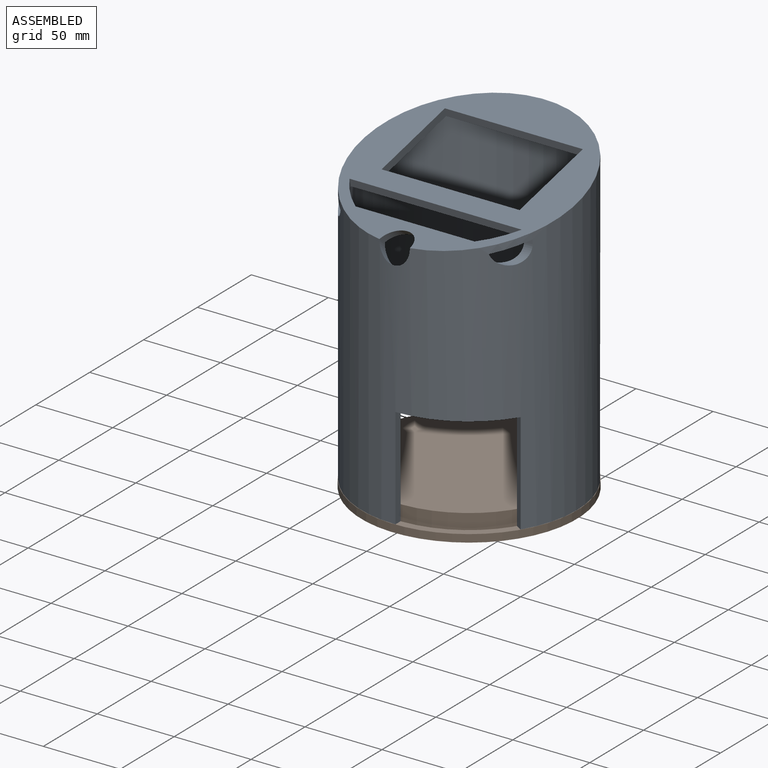
[diagram: assembled view]
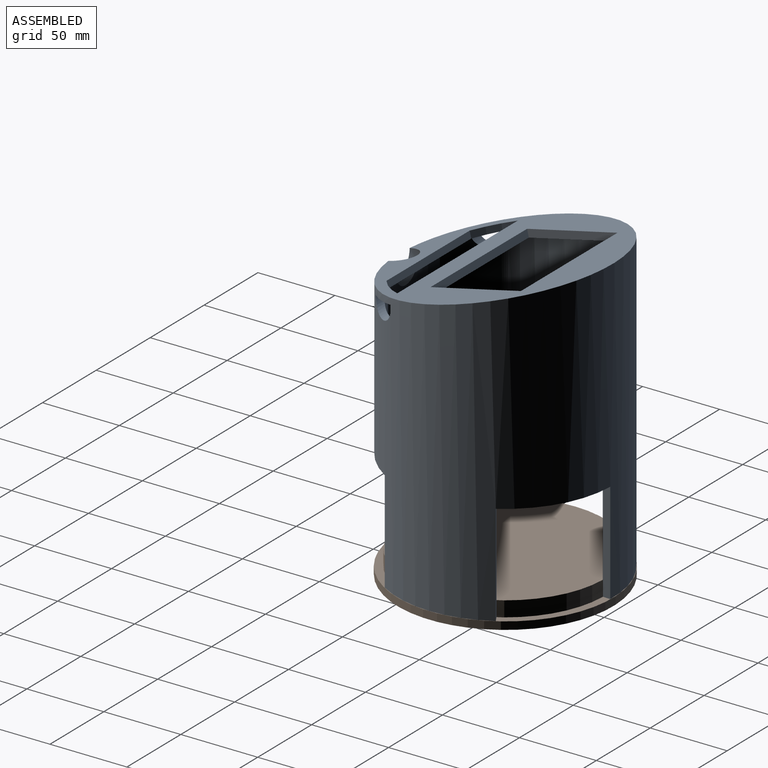
[diagram: assembled view, second angle]
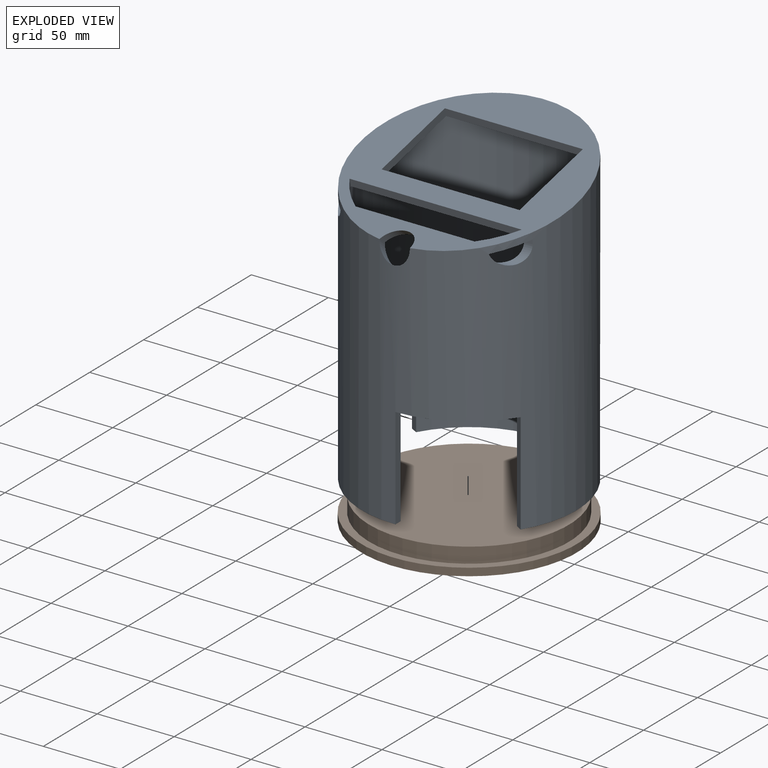
[diagram: exploded view]
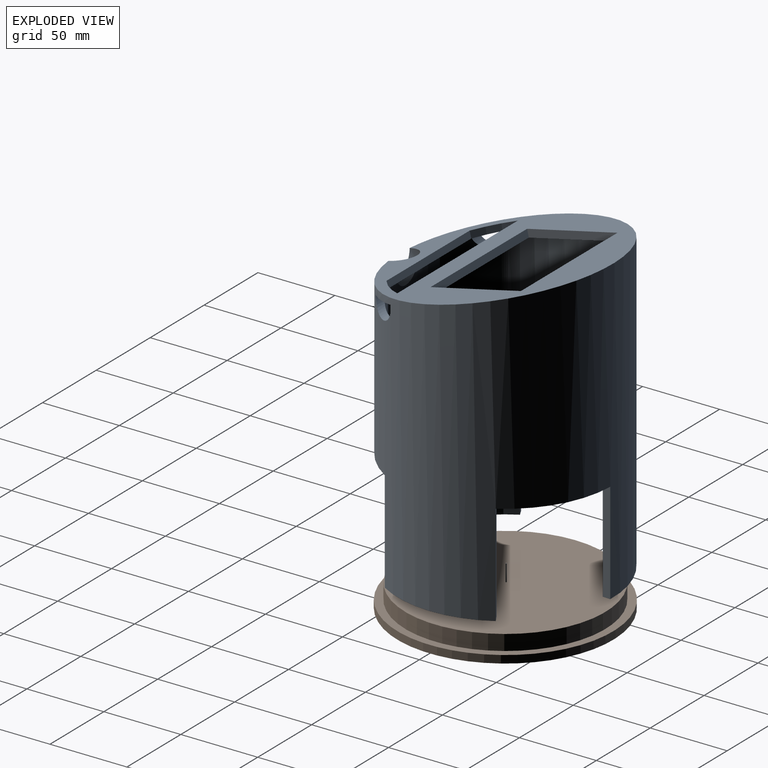
[diagram: exploded view, second angle]
ASSEMBLY  parts=2 mates=2
PART A: 34 faces, bbox 139.7x145.5x196.2 mm
  f0: plane 81.44x13.62mm, normal (0,0.22,-0.97), area 629mm2, adj f7,f12,f32
  f1: plane 139.68x138.97mm, normal (0,-0.22,0.97), area 8220.6mm2, adj f5,f8,f9,f10,f11,f12,f22,f23
  f2: plane 129.68x95.52mm, normal (0,0.22,-0.97), area 5224mm2, adj f7,f8,f9,f10,f11,f23,f24,f25
  f3: plane 62.57x39.29mm, normal (0,0,-1), area 368.4mm2, adj f5,f7,f14,f19
  f4: plane 63.26x38.21mm, normal (0,0,-1), area 368.4mm2, adj f5,f7,f16,f20
  f5: cylinder r=69.84mm len=196.19mm, axis (0,0,-1), area 64607.6mm2, adj f1,f3,f4,f6,f12,f13,f14,f15
  f6: plane 72.65x14.79mm, normal (0,0,-1), area 368.4mm2, adj f5,f7,f13,f17
  f7: cylinder r=64.84mm len=189.87mm, axis (0,0,-1), area 57857.2mm2, adj f0,f2,f3,f4,f6,f12,f13,f14
  f8: plane 89.61x4.88mm, normal (0,-0.97,-0.22), area 448mm2, adj f1,f2,f9,f11
  f9: plane 59.85x18.26mm, normal (1,0,0), area 301.2mm2, adj f1,f2,f8,f10
  f10: plane 89.61x4.88mm, normal (0,0.97,0.22), area 448mm2, adj f1,f2,f9,f11
  f11: plane 59.85x18.26mm, normal (-1,0,0), area 301.2mm2, adj f1,f2,f8,f10
  f12: cylinder r=9.89mm len=24.34mm, axis (0,0.75,-0.66), area 399.6mm2, adj f0,f1,f5,f7
  f13: plane 66x4.25mm, normal (-0.53,-0.85,0), area 330mm2, adj f5,f6,f7,f15
  f14: plane 66x5mm, normal (1,0.01,0), area 330mm2, adj f3,f5,f7,f15
  f15: plane 58.39x35.58mm, normal (0,0,-1), area 336.8mm2, adj f5,f7,f13,f14
  f16: plane 66x5mm, normal (1,-0.03,0), area 330mm2, adj f4,f5,f7,f18
  f17: plane 66x4.3mm, normal (-0.51,0.86,0), area 330mm2, adj f5,f6,f7,f18
  f18: plane 57.85x36.6mm, normal (0,0,-1), area 336.8mm2, adj f5,f7,f16,f17
  f19: plane 66x4.41mm, normal (-0.47,0.88,0), area 330mm2, adj f3,f5,f7,f21
  f20: plane 66x4.36mm, normal (-0.49,-0.87,0), area 330mm2, adj f4,f5,f7,f21
  f21: plane 66.98x13.24mm, normal (0,0,-1), area 336.8mm2, adj f5,f7,f19,f20
  f22: plane 77.25x4.41mm, normal (0,0.97,0.22), area 349.4mm2, adj f1,f23,f25,f30
  f23: cylinder r=64.39mm len=20.2mm, axis (0,-0.22,0.97), area 114.2mm2, adj f1,f2,f22,f24,f28,f30
  f24: plane 111.83x4.88mm, normal (0,-0.97,-0.22), area 559.2mm2, adj f1,f2,f23,f25
  f25: cylinder r=64.41mm len=20.2mm, axis (0,-0.22,0.97), area 114.2mm2, adj f1,f2,f22,f24,f29,f30
  f26: plane 6.35x0.09mm, normal (0,0,1), area 0.6mm2, adj f5,f7,f31,f32
  f27: plane 6.35x0.09mm, normal (0,0,1), area 0.6mm2, adj f5,f7,f32,f33
  f28: plane 7.21x2.92mm, normal (0,-1,0), area 17.8mm2, adj f2,f5,f7,f23,f30,f31
  f29: plane 7.2x2.92mm, normal (0,-1,0), area 17.8mm2, adj f2,f5,f7,f25,f30,f33
  f30: plane 125.51x19.91mm, normal (0,0.24,-0.97), area 462.4mm2, adj f5,f22,f23,f25,f28,f29,f32
  f31: cylinder r=10mm len=12.25mm, axis (-1,0,0), area 93.4mm2, adj f5,f7,f26,f28
  f32: cylinder r=10mm len=113.4mm, axis (-1,0,0), area 228.4mm2, adj f0,f5,f7,f26,f27,f30
  f33: cylinder r=10mm len=12.25mm, axis (-1,0,0), area 104.8mm2, adj f5,f7,f27,f29
PART B: 5 faces, bbox 140.1x140.1x15 mm
  f0: cylinder r=70.04mm len=140.09mm, axis (0,0,-1), area 2200.4mm2, adj f1,f2
  f1: plane 140.09x140.09mm, normal (0,0,1), area 2153.7mm2, adj f0,f3
  f2: plane 140.09x140.09mm, normal (0,0,-1), area 15412.5mm2, adj f0
  f3: cylinder r=64.96mm len=129.93mm, axis (0,0,-1), area 4081.8mm2, adj f1,f4
  f4: plane 129.93x129.93mm, normal (0,0,1), area 13258.7mm2, adj f3
PLACE A t=(-122.15,5.38,-0.84)mm
PLACE B rot(axis=(0,0,-1),180deg) t=(-122.15,7.92,-5.84)mm
MATE fastened B.f0 <-> A.f5  axis (0,0,1) through (-122.15,5.38,-0.84)mm
MATE cylindrical B.f0 <-> A.f5  axis (0,0,-1) through (-122.15,5.38,4.16)mm
